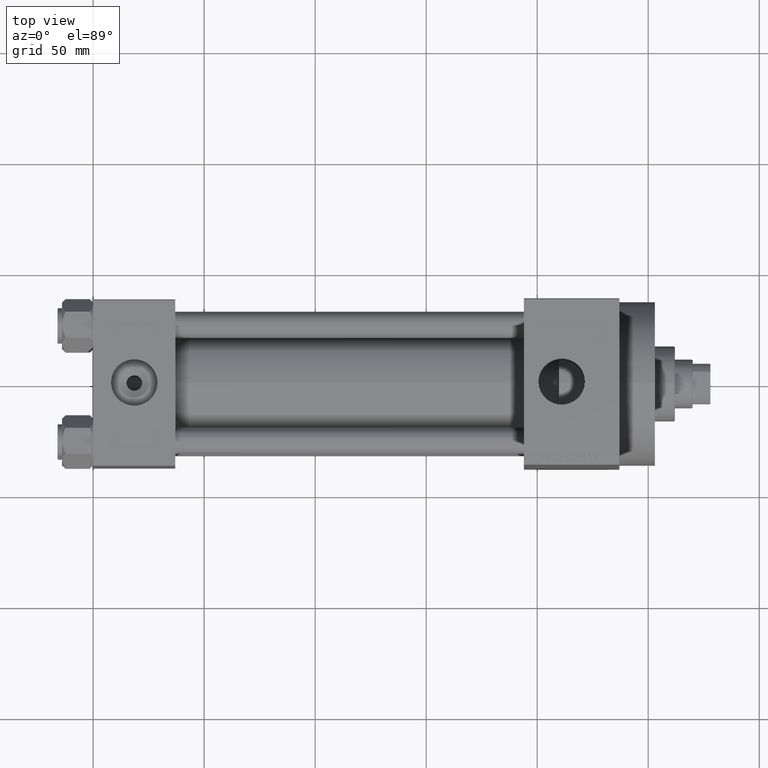
[diagram: clean part render]
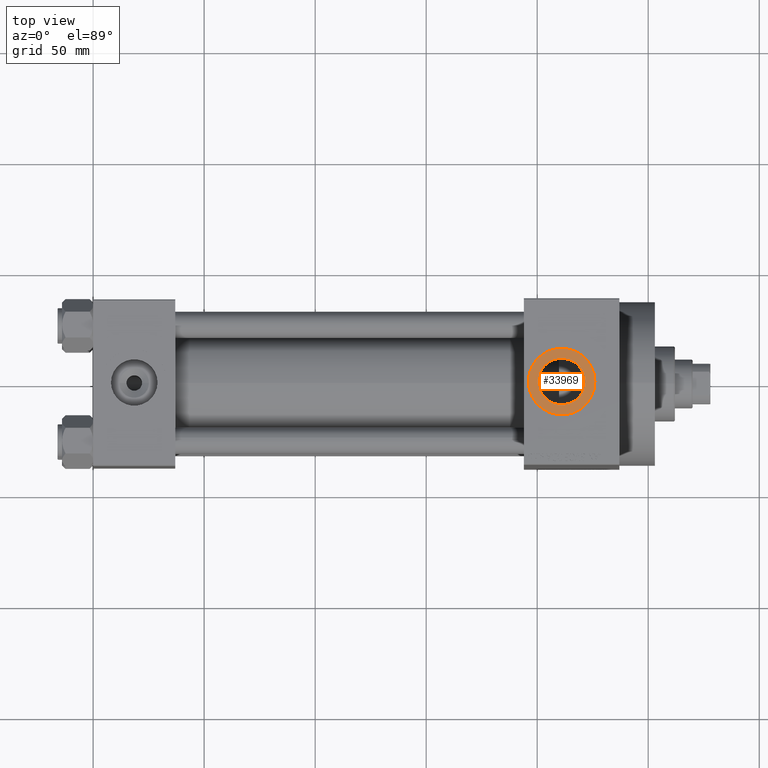
[diagram: same view with one face highlighted and labeled with its STEP entity id]
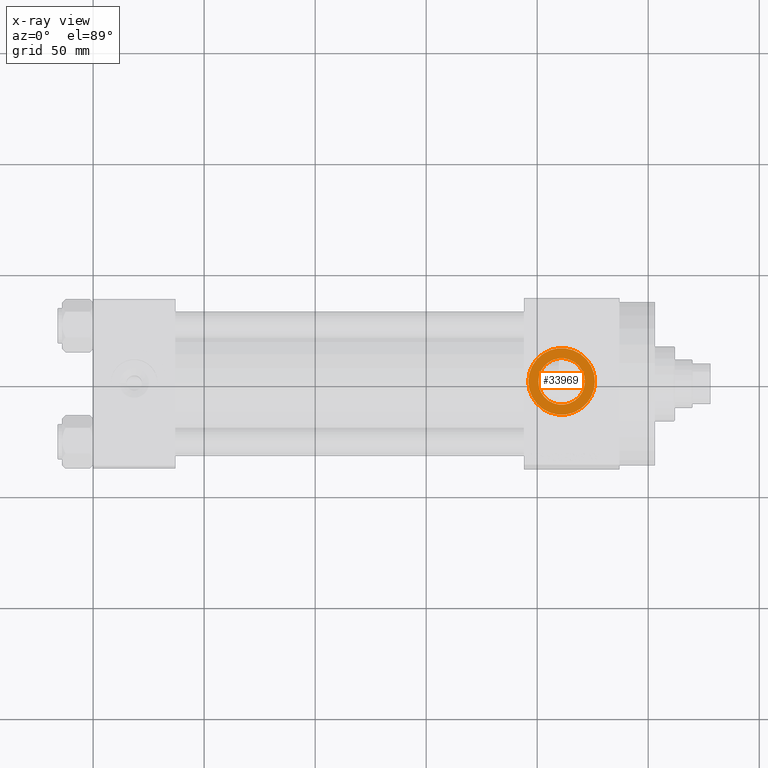
[diagram: x-ray of the same camera — body ghosted, the highlighted face saturated]
A machine part, top view. The second image highlights one B-rep face of the part: STEP entity #33969.
The next image is the same camera in x-ray: the body ghosted, the highlighted face saturated — about 0% of this face is hidden behind the body in this view.
In plain terms, the highlighted planar face has unit normal (0, 0, 1).
Its self-contained STEP definition (entity closure, byte-faithful):
#1938 = FACE_BOUND ( 'NONE', #37713, .T. ) ;
#2592 = CARTESIAN_POINT ( 'NONE',  ( 200.5200000000000387, -1.184237892933500047E-14, 63.79999999999996874 ) ) ;
#4993 = EDGE_CURVE ( 'NONE', #32275, #36578, #16624, .T. ) ;
#7067 = DIRECTION ( 'NONE',  ( 1.000000000000000000, 0.000000000000000000, 0.000000000000000000 ) ) ;
#7705 = CIRCLE ( 'NONE', #28376, 10.47999999999998977 ) ;
#9372 = PLANE ( 'NONE',  #32214 ) ;
#10082 = DIRECTION ( 'NONE',  ( 1.000000000000000000, 0.000000000000000000, -0.000000000000000000 ) ) ;
#12996 = CIRCLE ( 'NONE', #39028, 15.00000000000001421 ) ;
#13575 = AXIS2_PLACEMENT_3D ( 'NONE', #25337, #26044, #15253 ) ;
#13912 = EDGE_CURVE ( 'NONE', #14749, #25088, #16797, .T. ) ;
#14323 = EDGE_CURVE ( 'NONE', #36578, #32275, #12996, .T. ) ;
#14749 = VERTEX_POINT ( 'NONE', #2592 ) ;
#15253 = DIRECTION ( 'NONE',  ( 1.000000000000000000, 0.000000000000000000, 0.000000000000000000 ) ) ;
#15608 = CARTESIAN_POINT ( 'NONE',  ( 226.0000000000000284, -1.184237892933500047E-14, 63.79999999999996874 ) ) ;
#16624 = CIRCLE ( 'NONE', #13575, 15.00000000000001421 ) ;
#16797 = CIRCLE ( 'NONE', #47432, 10.47999999999998977 ) ;
#17710 = DIRECTION ( 'NONE',  ( 1.000000000000000000, 0.000000000000000000, 0.000000000000000000 ) ) ;
#24016 = CARTESIAN_POINT ( 'NONE',  ( 211.0000000000000284, -1.184237892933500047E-14, 63.79999999999996874 ) ) ;
#24814 = EDGE_LOOP ( 'NONE', ( #33568, #24850 ) ) ;
#24850 = ORIENTED_EDGE ( 'NONE', *, *, #4993, .T. ) ;
#25088 = VERTEX_POINT ( 'NONE', #26481 ) ;
#25125 = DIRECTION ( 'NONE',  ( -0.000000000000000000, -0.000000000000000000, -1.000000000000000000 ) ) ;
#25309 = CARTESIAN_POINT ( 'NONE',  ( 211.0000000000000284, -1.184237892933500047E-14, 63.79999999999996874 ) ) ;
#25337 = CARTESIAN_POINT ( 'NONE',  ( 211.0000000000000284, -1.184237892933500047E-14, 63.79999999999996874 ) ) ;
#26044 = DIRECTION ( 'NONE',  ( 0.000000000000000000, 0.000000000000000000, 1.000000000000000000 ) ) ;
#26481 = CARTESIAN_POINT ( 'NONE',  ( 221.4800000000000182, -1.055894908382857656E-14, 63.79999999999996874 ) ) ;
#28376 = AXIS2_PLACEMENT_3D ( 'NONE', #36356, #46916, #39959 ) ;
#29744 = ORIENTED_EDGE ( 'NONE', *, *, #37150, .T. ) ;
#31192 = FACE_OUTER_BOUND ( 'NONE', #24814, .T. ) ;
#32214 = AXIS2_PLACEMENT_3D ( 'NONE', #24016, #42937, #10082 ) ;
#32275 = VERTEX_POINT ( 'NONE', #40139 ) ;
#33277 = ORIENTED_EDGE ( 'NONE', *, *, #13912, .T. ) ;
#33568 = ORIENTED_EDGE ( 'NONE', *, *, #14323, .T. ) ;
#33969 = ADVANCED_FACE ( 'NONE', ( #1938, #31192 ), #9372, .T. ) ;
#35913 = CARTESIAN_POINT ( 'NONE',  ( 211.0000000000000284, -1.184237892933500047E-14, 63.79999999999996874 ) ) ;
#36356 = CARTESIAN_POINT ( 'NONE',  ( 211.0000000000000284, -1.184237892933500047E-14, 63.79999999999996874 ) ) ;
#36578 = VERTEX_POINT ( 'NONE', #15608 ) ;
#37150 = EDGE_CURVE ( 'NONE', #25088, #14749, #7705, .T. ) ;
#37713 = EDGE_LOOP ( 'NONE', ( #33277, #29744 ) ) ;
#39028 = AXIS2_PLACEMENT_3D ( 'NONE', #25309, #39933, #7067 ) ;
#39933 = DIRECTION ( 'NONE',  ( 0.000000000000000000, 0.000000000000000000, 1.000000000000000000 ) ) ;
#39959 = DIRECTION ( 'NONE',  ( 1.000000000000000000, 0.000000000000000000, 0.000000000000000000 ) ) ;
#40139 = CARTESIAN_POINT ( 'NONE',  ( 196.0000000000000000, -1.000540873061396536E-14, 63.79999999999996874 ) ) ;
#42937 = DIRECTION ( 'NONE',  ( 0.000000000000000000, 0.000000000000000000, 1.000000000000000000 ) ) ;
#46916 = DIRECTION ( 'NONE',  ( -0.000000000000000000, -0.000000000000000000, -1.000000000000000000 ) ) ;
#47432 = AXIS2_PLACEMENT_3D ( 'NONE', #35913, #25125, #17710 ) ;